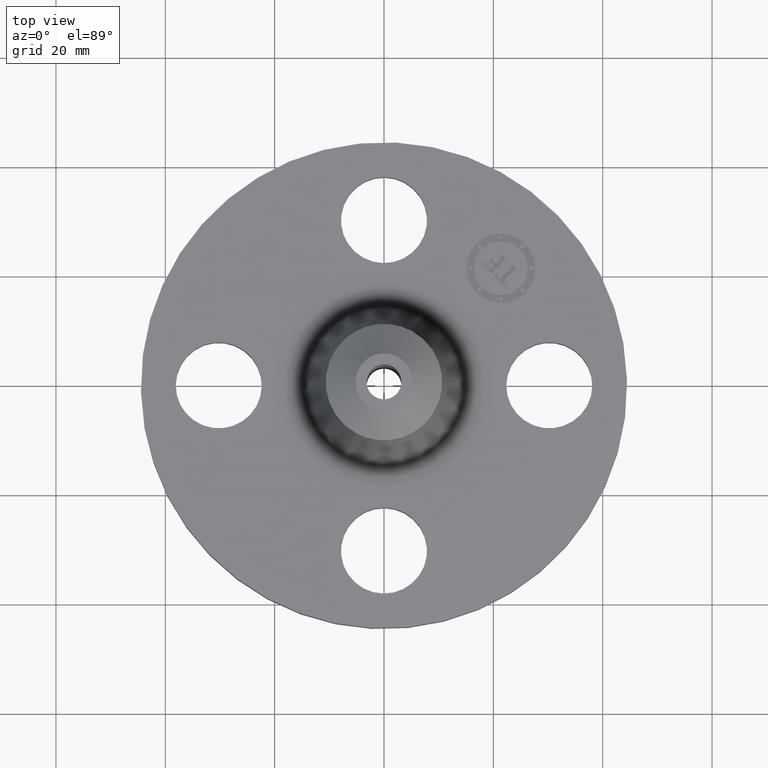
[diagram: clean part render]
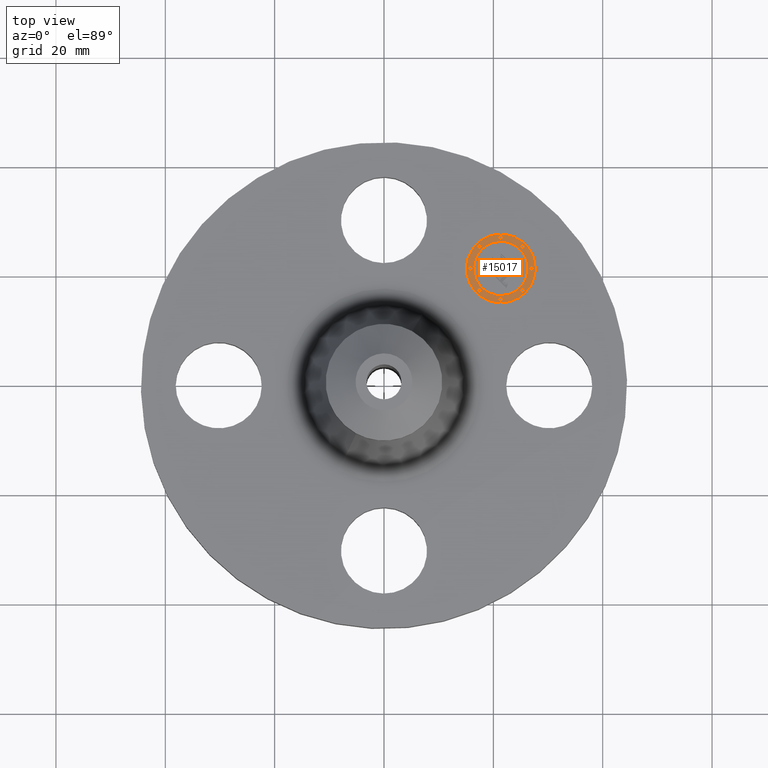
[diagram: same view with one face highlighted and labeled with its STEP entity id]
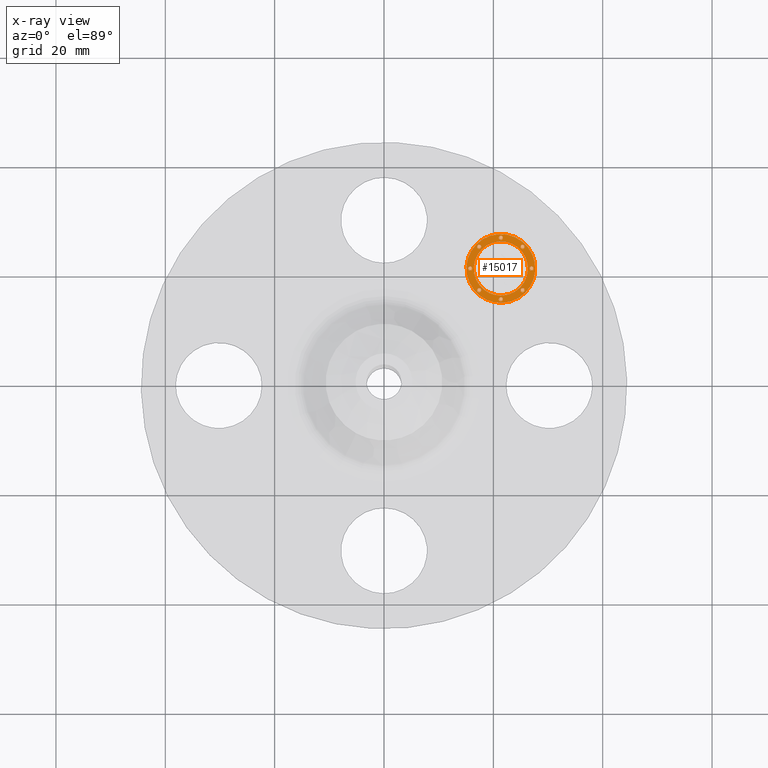
[diagram: x-ray of the same camera — body ghosted, the highlighted face saturated]
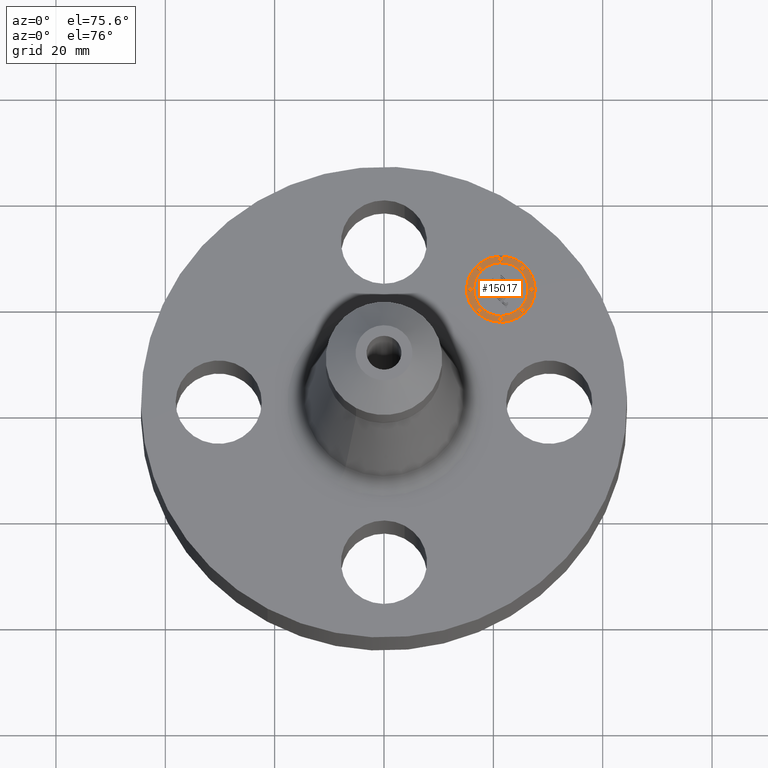
[diagram: same view with one face highlighted and labeled with its STEP entity id]
A machine part, top view. The second image highlights one B-rep face of the part: STEP entity #15017.
The next image is the same camera in x-ray: the body ghosted, the highlighted face saturated — about 0% of this face is hidden behind the body in this view.
A second angle (auxiliary view) of the same face is appended — the face is thin or edge-on in the first view.
In plain terms, the highlighted planar face has unit normal (0, -0, 1).
Its self-contained STEP definition (entity closure, byte-faithful):
#3668=AXIS2_PLACEMENT_3D('Plane Axis2P3D',#3665,#3666,#3667) ;
#14839=AXIS2_PLACEMENT_3D('Circle Axis2P3D',#14837,#14838,$) ;
#14848=AXIS2_PLACEMENT_3D('Circle Axis2P3D',#14846,#14847,$) ;
#14857=AXIS2_PLACEMENT_3D('Circle Axis2P3D',#14855,#14856,$) ;
#14866=AXIS2_PLACEMENT_3D('Circle Axis2P3D',#14864,#14865,$) ;
#14875=AXIS2_PLACEMENT_3D('Circle Axis2P3D',#14873,#14874,$) ;
#14884=AXIS2_PLACEMENT_3D('Circle Axis2P3D',#14882,#14883,$) ;
#14893=AXIS2_PLACEMENT_3D('Circle Axis2P3D',#14891,#14892,$) ;
#14902=AXIS2_PLACEMENT_3D('Circle Axis2P3D',#14900,#14901,$) ;
#14911=AXIS2_PLACEMENT_3D('Circle Axis2P3D',#14909,#14910,$) ;
#14920=AXIS2_PLACEMENT_3D('Circle Axis2P3D',#14918,#14919,$) ;
#14929=AXIS2_PLACEMENT_3D('Circle Axis2P3D',#14927,#14928,$) ;
#14938=AXIS2_PLACEMENT_3D('Circle Axis2P3D',#14936,#14937,$) ;
#14947=AXIS2_PLACEMENT_3D('Circle Axis2P3D',#14945,#14946,$) ;
#14956=AXIS2_PLACEMENT_3D('Circle Axis2P3D',#14954,#14955,$) ;
#14965=AXIS2_PLACEMENT_3D('Circle Axis2P3D',#14963,#14964,$) ;
#14974=AXIS2_PLACEMENT_3D('Circle Axis2P3D',#14972,#14973,$) ;
#14983=AXIS2_PLACEMENT_3D('Circle Axis2P3D',#14981,#14982,$) ;
#14992=AXIS2_PLACEMENT_3D('Circle Axis2P3D',#14990,#14991,$) ;
#15001=AXIS2_PLACEMENT_3D('Circle Axis2P3D',#14999,#15000,$) ;
#15010=AXIS2_PLACEMENT_3D('Circle Axis2P3D',#15008,#15009,$) ;
#3665=CARTESIAN_POINT('Axis2P3D Location',(0.,0.,0.365000000001)) ;
#14837=CARTESIAN_POINT('Axis2P3D Location',(0.841457069615,0.841457069615,0.365000000001)) ;
#14841=CARTESIAN_POINT('Vertex',(0.666448141271,1.01646599796,0.365000000001)) ;
#14843=CARTESIAN_POINT('Vertex',(1.01646599796,0.666448141271,0.365000000001)) ;
#14846=CARTESIAN_POINT('Axis2P3D Location',(0.841457069615,0.841457069615,0.365000000001)) ;
#14855=CARTESIAN_POINT('Axis2P3D Location',(0.841457069615,0.841457069615,0.365000000001)) ;
#14859=CARTESIAN_POINT('Vertex',(0.979342891947,0.703571247283,0.365000000001)) ;
#14861=CARTESIAN_POINT('Vertex',(0.703571247283,0.979342891947,0.365000000001)) ;
#14864=CARTESIAN_POINT('Axis2P3D Location',(0.841457069615,0.841457069615,0.365000000001)) ;
#14873=CARTESIAN_POINT('Axis2P3D Location',(0.685009694277,0.685009694277,0.365000000001)) ;
#14877=CARTESIAN_POINT('Vertex',(0.695616295995,0.674403092559,0.365000000001)) ;
#14879=CARTESIAN_POINT('Vertex',(0.674403092559,0.695616295995,0.365000000001)) ;
#14882=CARTESIAN_POINT('Axis2P3D Location',(0.685009694277,0.685009694277,0.365000000001)) ;
#14891=CARTESIAN_POINT('Axis2P3D Location',(0.685009694277,0.997904444954,0.365000000001)) ;
#14895=CARTESIAN_POINT('Vertex',(0.695616295995,0.987297843236,0.365000000001)) ;
#14897=CARTESIAN_POINT('Vertex',(0.674403092559,1.00851104667,0.365000000001)) ;
#14900=CARTESIAN_POINT('Axis2P3D Location',(0.685009694277,0.997904444954,0.365000000001)) ;
#14909=CARTESIAN_POINT('Axis2P3D Location',(0.620207069614,0.841457069615,0.365000000001)) ;
#14913=CARTESIAN_POINT('Vertex',(0.630813671332,0.830850467898,0.365000000001)) ;
#14915=CARTESIAN_POINT('Vertex',(0.609600467897,0.852063671333,0.365000000001)) ;
#14918=CARTESIAN_POINT('Axis2P3D Location',(0.620207069614,0.841457069615,0.365000000001)) ;
#14927=CARTESIAN_POINT('Axis2P3D Location',(0.997904444954,0.997904444954,0.365000000001)) ;
#14931=CARTESIAN_POINT('Vertex',(1.00851104667,0.987297843236,0.365000000001)) ;
#14933=CARTESIAN_POINT('Vertex',(0.987297843236,1.00851104667,0.365000000001)) ;
#14936=CARTESIAN_POINT('Axis2P3D Location',(0.997904444954,0.997904444954,0.365000000001)) ;
#14945=CARTESIAN_POINT('Axis2P3D Location',(0.841457069615,1.06270706962,0.365000000001)) ;
#14949=CARTESIAN_POINT('Vertex',(0.852063671333,1.0521004679,0.365000000001)) ;
#14951=CARTESIAN_POINT('Vertex',(0.830850467898,1.07331367133,0.365000000001)) ;
#14954=CARTESIAN_POINT('Axis2P3D Location',(0.841457069615,1.06270706962,0.365000000001)) ;
#14963=CARTESIAN_POINT('Axis2P3D Location',(0.997904444954,0.685009694277,0.365000000001)) ;
#14967=CARTESIAN_POINT('Vertex',(0.987297843236,0.695616295995,0.365000000001)) ;
#14969=CARTESIAN_POINT('Vertex',(1.00851104667,0.674403092559,0.365000000001)) ;
#14972=CARTESIAN_POINT('Axis2P3D Location',(0.997904444954,0.685009694277,0.365000000001)) ;
#14981=CARTESIAN_POINT('Axis2P3D Location',(0.841457069615,0.620207069614,0.365000000001)) ;
#14985=CARTESIAN_POINT('Vertex',(0.830850467898,0.630813671332,0.365000000001)) ;
#14987=CARTESIAN_POINT('Vertex',(0.852063671333,0.609600467897,0.365000000001)) ;
#14990=CARTESIAN_POINT('Axis2P3D Location',(0.841457069615,0.620207069614,0.365000000001)) ;
#14999=CARTESIAN_POINT('Axis2P3D Location',(1.06270706962,0.841457069615,0.365000000001)) ;
#15003=CARTESIAN_POINT('Vertex',(1.0521004679,0.852063671333,0.365000000001)) ;
#15005=CARTESIAN_POINT('Vertex',(1.07331367133,0.830850467898,0.365000000001)) ;
#15008=CARTESIAN_POINT('Axis2P3D Location',(1.06270706962,0.841457069615,0.365000000001)) ;
#3666=DIRECTION('Axis2P3D Direction',(0.,-0.,0.0393700787402)) ;
#3667=DIRECTION('Axis2P3D XDirection',(0.027838849653,0.027838849653,0.)) ;
#14838=DIRECTION('Axis2P3D Direction',(0.,-0.,0.0393700787402)) ;
#14847=DIRECTION('Axis2P3D Direction',(0.,-0.,0.0393700787402)) ;
#14856=DIRECTION('Axis2P3D Direction',(0.,-0.,0.0393700787402)) ;
#14865=DIRECTION('Axis2P3D Direction',(0.,-0.,0.0393700787402)) ;
#14874=DIRECTION('Axis2P3D Direction',(0.,-0.,0.0393700787402)) ;
#14883=DIRECTION('Axis2P3D Direction',(0.,-0.,0.0393700787402)) ;
#14892=DIRECTION('Axis2P3D Direction',(0.,-0.,0.0393700787402)) ;
#14901=DIRECTION('Axis2P3D Direction',(0.,-0.,0.0393700787402)) ;
#14910=DIRECTION('Axis2P3D Direction',(0.,-0.,0.0393700787402)) ;
#14919=DIRECTION('Axis2P3D Direction',(0.,-0.,0.0393700787402)) ;
#14928=DIRECTION('Axis2P3D Direction',(0.,-0.,0.0393700787402)) ;
#14937=DIRECTION('Axis2P3D Direction',(0.,-0.,0.0393700787402)) ;
#14946=DIRECTION('Axis2P3D Direction',(0.,-0.,0.0393700787402)) ;
#14955=DIRECTION('Axis2P3D Direction',(0.,-0.,0.0393700787402)) ;
#14964=DIRECTION('Axis2P3D Direction',(0.,-0.,0.0393700787402)) ;
#14973=DIRECTION('Axis2P3D Direction',(0.,-0.,0.0393700787402)) ;
#14982=DIRECTION('Axis2P3D Direction',(0.,-0.,0.0393700787402)) ;
#14991=DIRECTION('Axis2P3D Direction',(0.,-0.,0.0393700787402)) ;
#15000=DIRECTION('Axis2P3D Direction',(0.,-0.,0.0393700787402)) ;
#15009=DIRECTION('Axis2P3D Direction',(0.,-0.,0.0393700787402)) ;
#14852=ORIENTED_EDGE('',*,*,#14845,.T.) ;
#14853=ORIENTED_EDGE('',*,*,#14850,.T.) ;
#14870=ORIENTED_EDGE('',*,*,#14863,.F.) ;
#14871=ORIENTED_EDGE('',*,*,#14868,.F.) ;
#14888=ORIENTED_EDGE('',*,*,#14881,.F.) ;
#14889=ORIENTED_EDGE('',*,*,#14886,.F.) ;
#14906=ORIENTED_EDGE('',*,*,#14899,.F.) ;
#14907=ORIENTED_EDGE('',*,*,#14904,.F.) ;
#14924=ORIENTED_EDGE('',*,*,#14917,.F.) ;
#14925=ORIENTED_EDGE('',*,*,#14922,.F.) ;
#14942=ORIENTED_EDGE('',*,*,#14935,.F.) ;
#14943=ORIENTED_EDGE('',*,*,#14940,.F.) ;
#14960=ORIENTED_EDGE('',*,*,#14953,.F.) ;
#14961=ORIENTED_EDGE('',*,*,#14958,.F.) ;
#14978=ORIENTED_EDGE('',*,*,#14971,.F.) ;
#14979=ORIENTED_EDGE('',*,*,#14976,.F.) ;
#14996=ORIENTED_EDGE('',*,*,#14989,.F.) ;
#14997=ORIENTED_EDGE('',*,*,#14994,.F.) ;
#15014=ORIENTED_EDGE('',*,*,#15007,.F.) ;
#15015=ORIENTED_EDGE('',*,*,#15012,.F.) ;
#14872=FACE_BOUND('',#14869,.T.) ;
#14890=FACE_BOUND('',#14887,.T.) ;
#14908=FACE_BOUND('',#14905,.T.) ;
#14926=FACE_BOUND('',#14923,.T.) ;
#14944=FACE_BOUND('',#14941,.T.) ;
#14962=FACE_BOUND('',#14959,.T.) ;
#14980=FACE_BOUND('',#14977,.T.) ;
#14998=FACE_BOUND('',#14995,.T.) ;
#15016=FACE_BOUND('',#15013,.T.) ;
#15017=ADVANCED_FACE('PartBody',(#14854,#14872,#14890,#14908,#14926,#14944,#14962,#14980,#14998,#15016),#3669,.T.) ;
#14840=CIRCLE('generated circle',#14839,0.247500000001) ;
#14849=CIRCLE('generated circle',#14848,0.247500000001) ;
#14858=CIRCLE('generated circle',#14857,0.195000000001) ;
#14867=CIRCLE('generated circle',#14866,0.195000000001) ;
#14876=CIRCLE('generated circle',#14875,0.0150000000001) ;
#14885=CIRCLE('generated circle',#14884,0.0150000000001) ;
#14894=CIRCLE('generated circle',#14893,0.0150000000001) ;
#14903=CIRCLE('generated circle',#14902,0.0150000000001) ;
#14912=CIRCLE('generated circle',#14911,0.0150000000001) ;
#14921=CIRCLE('generated circle',#14920,0.0150000000001) ;
#14930=CIRCLE('generated circle',#14929,0.0150000000001) ;
#14939=CIRCLE('generated circle',#14938,0.0150000000001) ;
#14948=CIRCLE('generated circle',#14947,0.0150000000001) ;
#14957=CIRCLE('generated circle',#14956,0.0150000000001) ;
#14966=CIRCLE('generated circle',#14965,0.0150000000001) ;
#14975=CIRCLE('generated circle',#14974,0.0150000000001) ;
#14984=CIRCLE('generated circle',#14983,0.0150000000001) ;
#14993=CIRCLE('generated circle',#14992,0.0150000000001) ;
#15002=CIRCLE('generated circle',#15001,0.0150000000001) ;
#15011=CIRCLE('generated circle',#15010,0.0150000000001) ;
#14845=EDGE_CURVE('',#14842,#14844,#14840,.T.) ;
#14850=EDGE_CURVE('',#14844,#14842,#14849,.T.) ;
#14863=EDGE_CURVE('',#14860,#14862,#14858,.T.) ;
#14868=EDGE_CURVE('',#14862,#14860,#14867,.T.) ;
#14881=EDGE_CURVE('',#14878,#14880,#14876,.T.) ;
#14886=EDGE_CURVE('',#14880,#14878,#14885,.T.) ;
#14899=EDGE_CURVE('',#14896,#14898,#14894,.T.) ;
#14904=EDGE_CURVE('',#14898,#14896,#14903,.T.) ;
#14917=EDGE_CURVE('',#14914,#14916,#14912,.T.) ;
#14922=EDGE_CURVE('',#14916,#14914,#14921,.T.) ;
#14935=EDGE_CURVE('',#14932,#14934,#14930,.T.) ;
#14940=EDGE_CURVE('',#14934,#14932,#14939,.T.) ;
#14953=EDGE_CURVE('',#14950,#14952,#14948,.T.) ;
#14958=EDGE_CURVE('',#14952,#14950,#14957,.T.) ;
#14971=EDGE_CURVE('',#14968,#14970,#14966,.T.) ;
#14976=EDGE_CURVE('',#14970,#14968,#14975,.T.) ;
#14989=EDGE_CURVE('',#14986,#14988,#14984,.T.) ;
#14994=EDGE_CURVE('',#14988,#14986,#14993,.T.) ;
#15007=EDGE_CURVE('',#15004,#15006,#15002,.T.) ;
#15012=EDGE_CURVE('',#15006,#15004,#15011,.T.) ;
#14851=EDGE_LOOP('',(#14852,#14853)) ;
#14869=EDGE_LOOP('',(#14870,#14871)) ;
#14887=EDGE_LOOP('',(#14888,#14889)) ;
#14905=EDGE_LOOP('',(#14906,#14907)) ;
#14923=EDGE_LOOP('',(#14924,#14925)) ;
#14941=EDGE_LOOP('',(#14942,#14943)) ;
#14959=EDGE_LOOP('',(#14960,#14961)) ;
#14977=EDGE_LOOP('',(#14978,#14979)) ;
#14995=EDGE_LOOP('',(#14996,#14997)) ;
#15013=EDGE_LOOP('',(#15014,#15015)) ;
#14854=FACE_OUTER_BOUND('',#14851,.T.) ;
#3669=PLANE('',#3668) ;
#14842=VERTEX_POINT('',#14841) ;
#14844=VERTEX_POINT('',#14843) ;
#14860=VERTEX_POINT('',#14859) ;
#14862=VERTEX_POINT('',#14861) ;
#14878=VERTEX_POINT('',#14877) ;
#14880=VERTEX_POINT('',#14879) ;
#14896=VERTEX_POINT('',#14895) ;
#14898=VERTEX_POINT('',#14897) ;
#14914=VERTEX_POINT('',#14913) ;
#14916=VERTEX_POINT('',#14915) ;
#14932=VERTEX_POINT('',#14931) ;
#14934=VERTEX_POINT('',#14933) ;
#14950=VERTEX_POINT('',#14949) ;
#14952=VERTEX_POINT('',#14951) ;
#14968=VERTEX_POINT('',#14967) ;
#14970=VERTEX_POINT('',#14969) ;
#14986=VERTEX_POINT('',#14985) ;
#14988=VERTEX_POINT('',#14987) ;
#15004=VERTEX_POINT('',#15003) ;
#15006=VERTEX_POINT('',#15005) ;